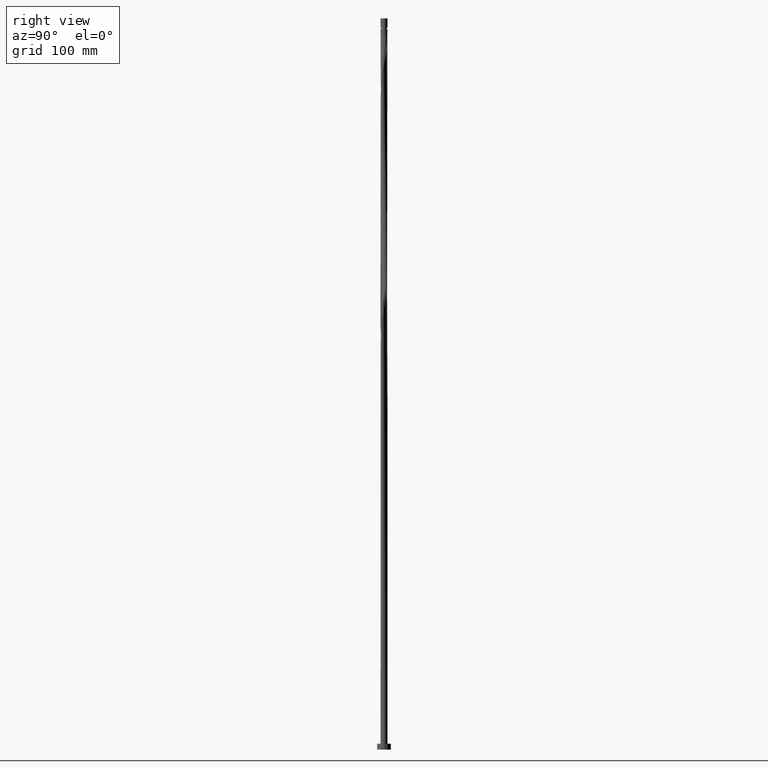
[diagram: clean part render]
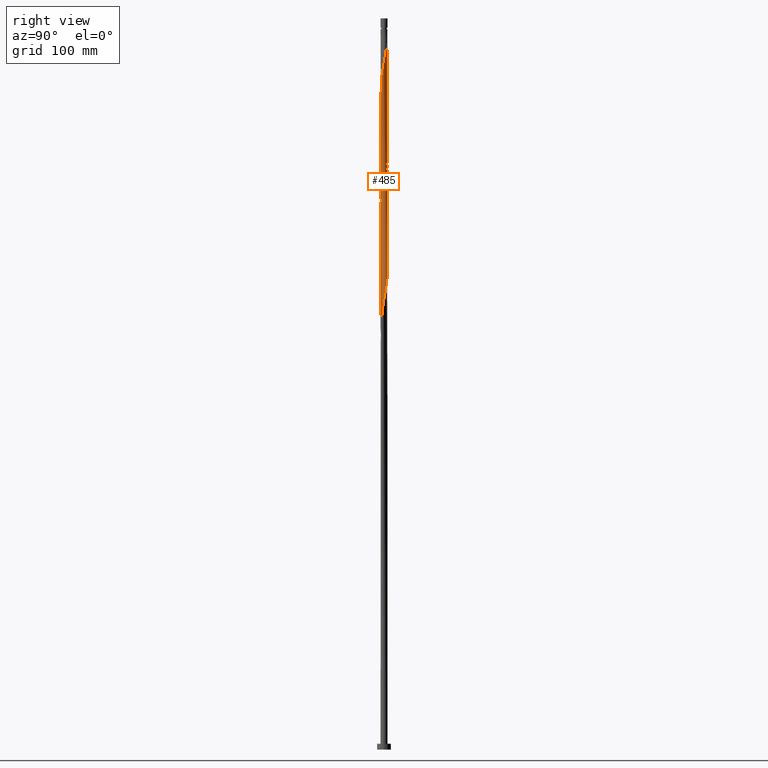
[diagram: same view with one face highlighted and labeled with its STEP entity id]
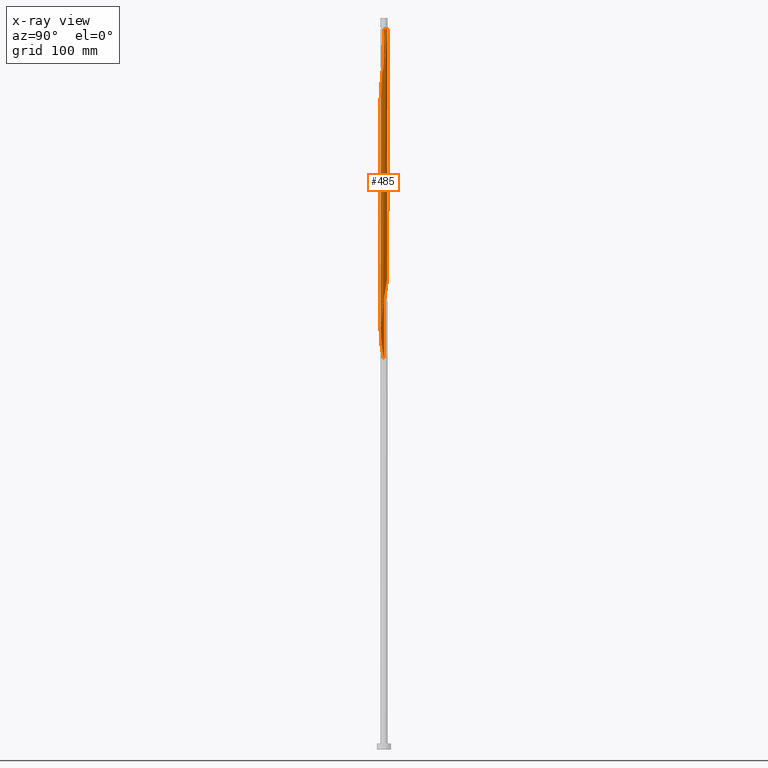
[diagram: x-ray of the same camera — body ghosted, the highlighted face saturated]
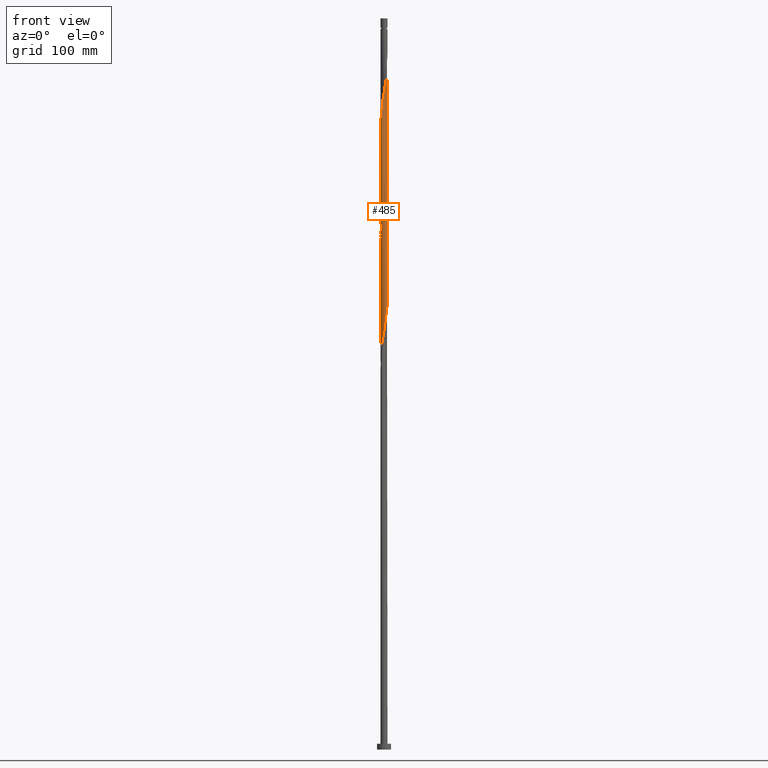
[diagram: same view with one face highlighted and labeled with its STEP entity id]
A machine part, right view. The second image highlights one B-rep face of the part: STEP entity #485.
The next image is the same camera in x-ray: the body ghosted, the highlighted face saturated — about 0% of this face is hidden behind the body in this view.
A second angle (front view) of the same face is appended — the face is thin or edge-on in the first view.
In plain terms, the highlighted cylindrical surface (bore or boss wall) has radius 3 mm, axis along (-0, -0, -1).
Its self-contained STEP definition (entity closure, byte-faithful):
#5 = ORIENTED_EDGE ( 'NONE', *, *, #1418, .F. ) ;
#6 = CARTESIAN_POINT ( 'NONE',  ( -2.194724654370445727, 2.064088819191737478, 532.7914885666799591 ) ) ;
#14 = CARTESIAN_POINT ( 'NONE',  ( 2.982541993412459735, 0.3231768208446592627, 593.0120768019737625 ) ) ;
#22 = VERTEX_POINT ( 'NONE', #1299 ) ;
#23 = CARTESIAN_POINT ( 'NONE',  ( -0.04660394873883114825, 2.999637990151807543, 617.7179591549150928 ) ) ;
#28 = DIRECTION ( 'NONE',  ( -0.000000000000000000, -0.000000000000000000, -1.000000000000000000 ) ) ;
#44 = CARTESIAN_POINT ( 'NONE',  ( -1.300884907186418582, 2.717531493887126892, 526.6150179784447118 ) ) ;
#49 = CARTESIAN_POINT ( 'NONE',  ( 2.825969499858178136, -1.044593388781091869, 585.2914885666795044 ) ) ;
#56 = CARTESIAN_POINT ( 'NONE',  ( 1.127051113500263435, 2.780243835989537171, 512.7179591549150928 ) ) ;
#61 = CARTESIAN_POINT ( 'NONE',  ( 2.897882515124419189, -0.7760650285486373479, 586.8356062137385152 ) ) ;
#70 = CARTESIAN_POINT ( 'NONE',  ( 2.365677638043353515, 1.844876503417411051, 602.2767826843266903 ) ) ;
#82 = CARTESIAN_POINT ( 'NONE',  ( 1.539482439194282515, 2.574877437745814568, 608.4532532725622787 ) ) ;
#102 = CARTESIAN_POINT ( 'NONE',  ( -3.012488736012828738, 0.04680360466508876743, 440.1444297431503969 ) ) ;
#109 = CARTESIAN_POINT ( 'NONE',  ( 0.3245613423124111829, -2.995319498332392971, 566.7620768019739899 ) ) ;
#116 = CARTESIAN_POINT ( 'NONE',  ( -1.384678644784982593, -2.675807170311462535, 353.6738415078563662 ) ) ;
#122 = CARTESIAN_POINT ( 'NONE',  ( 1.852780136845253445, -2.375812435047330418, 576.0267826843268040 ) ) ;
#128 = CARTESIAN_POINT ( 'NONE',  ( -1.852780136845251890, -2.375812435047325977, 350.5856062137387426 ) ) ;
#133 = CARTESIAN_POINT ( 'NONE',  ( -1.300884907186420802, -2.717531493887130445, 557.4973709196208347 ) ) ;
#138 = CARTESIAN_POINT ( 'NONE',  ( 3.012488736012828738, -0.04680360466508843437, 387.6444297431504538 ) ) ;
#139 = CARTESIAN_POINT ( 'NONE',  ( -2.982541993412459735, -0.3231768208446587076, 540.5120768019739899 ) ) ;
#144 = CARTESIAN_POINT ( 'NONE',  ( -1.778079971202145115, -2.432223381604499135, 554.4091356255033816 ) ) ;
#149 = CARTESIAN_POINT ( 'NONE',  ( -2.792154675592610769, 1.131879511953520323, 433.9679591549151496 ) ) ;
#158 = CYLINDRICAL_SURFACE ( 'NONE', #254, 3.000000000000000444 ) ;
#161 = CARTESIAN_POINT ( 'NONE',  ( -2.585908467384851583, -1.546077734242732094, 344.4091356255033816 ) ) ;
#186 = DIRECTION ( 'NONE',  ( -0.000000000000000000, -0.000000000000000000, -1.000000000000000000 ) ) ;
#191 = CARTESIAN_POINT ( 'NONE',  ( 2.872374963202350973, 0.8657147744888740171, 596.1003120960915567 ) ) ;
#197 = CARTESIAN_POINT ( 'NONE',  ( -2.365677638043349074, 1.844876503417407720, 534.3356062137385152 ) ) ;
#218 = CARTESIAN_POINT ( 'NONE',  ( 0.3245613423124107388, 2.995319498332386754, 517.3503120960915567 ) ) ;
#238 = CARTESIAN_POINT ( 'NONE',  ( 0.5053716063653423962, -2.957126906218214835, 469.4826650372681343 ) ) ;
#250 =( BOUNDED_CURVE ( )  B_SPLINE_CURVE ( 2, ( #1995, #1837, #550, #1346, #266, #1056, #386, #1177, #1682, #258, #730, #1807, #1027, #1215, #1038, #1653, #238, #889, #720, #1185, #906, #1514, #1356, #748, #1197, #1828, #2003, #397, #1047, #1375, #578, #1674, #1845, #915, #1540, #102, #758, #1702, #1861, #149, #1391, #1571, #777, #955, #302, #458, #798, #1854, #291, #1581, #1270, #1428, #2033, #600, #944, #2023, #1416, #274, #1115, #1105, #436, #923, #1730, #445, #1237, #2013, #1551, #2053, #1088, #138, #1230, #1711, #283, #612, #637, #1096, #1894, #1562, #784, #1247, #427, #1871, #473, #1722, #1259, #934, #2043, #624, #312, #1883, #1738, #116, #1077, #128, #1402, #965, #1591, #161, #809, #589, #767, #1773, #531, #1324, #1919 ),
 .UNSPECIFIED., .F., .T. ) 
 B_SPLINE_CURVE_WITH_KNOTS ( ( 3, 2, 2, 2, 2, 2, 2, 2, 2, 2, 2, 2, 2, 2, 2, 2, 2, 2, 2, 2, 2, 2, 2, 2, 2, 2, 2, 2, 2, 2, 2, 2, 2, 2, 2, 2, 2, 2, 2, 2, 2, 2, 2, 2, 2, 2, 2, 2, 2, 2, 2, 2, 3 ),
 ( 0.5545293573162904943, 0.5588235294117647189, 0.5661764705882352811, 0.5735294117647058432, 0.5808823529411765163, 0.5882352941176470784, 0.5955882352941176405, 0.6029411764705882026, 0.6102941176470588758, 0.6176470588235294379, 0.6250000000000000000, 0.6323529411764705621, 0.6397058823529411242, 0.6470588235294117974, 0.6544117647058823595, 0.6617647058823529216, 0.6691176470588234837, 0.6764705882352941568, 0.6838235294117647189, 0.6911764705882352811, 0.6985294117647058432, 0.7058823529411765163, 0.7132352941176470784, 0.7205882352941176405, 0.7279411764705882026, 0.7352941176470588758, 0.7426470588235294379, 0.7500000000000000000, 0.7573529411764705621, 0.7647058823529411242, 0.7720588235294117974, 0.7794117647058823595, 0.7867647058823529216, 0.7941176470588234837, 0.8014705882352941568, 0.8088235294117647189, 0.8161764705882352811, 0.8235294117647058432, 0.8308823529411765163, 0.8382352941176470784, 0.8455882352941176405, 0.8529411764705882026, 0.8602941176470588758, 0.8676470588235294379, 0.8750000000000000000, 0.8823529411764705621, 0.8897058823529411242, 0.8970588235294117974, 0.9044117647058823595, 0.9117647058823529216, 0.9191176470588234837, 0.9264705882352941568, 0.9295293573162902723 ),
 .UNSPECIFIED. ) 
 CURVE ( )  GEOMETRIC_REPRESENTATION_ITEM ( )  RATIONAL_B_SPLINE_CURVE ( ( 0.9072066346053562214, 0.9068261157891231994, 0.9090909090909947698, 0.9052128875410255793, 0.9090909090909947698, 0.9052128875410255793, 0.9090909090909947698, 0.9052128875410255793, 0.9090909090909947698, 0.9052128875410255793, 0.9090909090909947698, 0.9052128875410255793, 0.9090909090909947698, 0.9052128875410255793, 0.9090909090909947698, 0.9052128875410255793, 0.9090909090909947698, 0.9052128875410255793, 0.9090909090909947698, 0.9052128875410255793, 0.9090909090909947698, 0.9052128875410255793, 0.9090909090909947698, 0.9052128875410255793, 0.9090909090909947698, 0.9052128875410255793, 0.9090909090909947698, 0.9052128875410255793, 0.9090909090909947698, 0.9052128875410255793, 0.9090909090909947698, 0.9052128875410255793, 0.9090909090909947698, 0.9052128875410255793, 0.9090909090909947698, 0.9052128875410255793, 0.9090909090909947698, 0.9052128875410255793, 0.9090909090909947698, 0.9052128875410255793, 0.9090909090909947698, 0.9052128875410255793, 0.9090909090909947698, 0.9052128875410255793, 0.9090909090909947698, 0.9052128875410255793, 0.9090909090909947698, 0.9052128875410255793, 0.9090909090909947698, 0.9052128875410255793, 0.9090909090909947698, 0.9052128875410255793, 0.9090909090909947698, 0.9052128875410255793, 0.9090909090909947698, 0.9052128875410255793, 0.9090909090909947698, 0.9052128875410255793, 0.9090909090909947698, 0.9052128875410255793, 0.9090909090909947698, 0.9052128875410255793, 0.9090909090909947698, 0.9052128875410255793, 0.9090909090909947698, 0.9052128875410255793, 0.9090909090909947698, 0.9052128875410255793, 0.9090909090909947698, 0.9052128875410255793, 0.9090909090909947698, 0.9052128875410255793, 0.9090909090909947698, 0.9052128875410255793, 0.9090909090909947698, 0.9052128875410255793, 0.9090909090909947698, 0.9052128875410255793, 0.9090909090909947698, 0.9052128875410255793, 0.9090909090909947698, 0.9052128875410255793, 0.9090909090909947698, 0.9052128875410255793, 0.9090909090909947698, 0.9052128875410255793, 0.9090909090909947698, 0.9052128875410255793, 0.9090909090909947698, 0.9052128875410255793, 0.9090909090909947698, 0.9052128875410255793, 0.9090909090909947698, 0.9052128875410255793, 0.9090909090909947698, 0.9052128875410255793, 0.9090909090909947698, 0.9052128875410255793, 0.9090909090909947698, 0.9052128875410255793, 0.9090909090909947698, 0.9052128875410255793, 0.9090909090909947698, 0.9074776808428971497, 0.9072066346053563324 ) ) 
 REPRESENTATION_ITEM ( '' )  );
#252 = CARTESIAN_POINT ( 'NONE',  ( 2.194724654370450168, 2.064088819191740587, 603.8209003313859284 ) ) ;
#254 = AXIS2_PLACEMENT_3D ( 'NONE', #1437, #1619, #1748 ) ;
#258 = CARTESIAN_POINT ( 'NONE',  ( 2.194724654370444838, -2.064088819191738366, 480.2914885666799023 ) ) ;
#266 = CARTESIAN_POINT ( 'NONE',  ( 2.872374963202346088, -0.8657147744888742391, 488.0120768019738762 ) ) ;
#274 = CARTESIAN_POINT ( 'NONE',  ( 1.384678644784983037, 2.675807170311462535, 406.1738415078564230 ) ) ;
#283 = CARTESIAN_POINT ( 'NONE',  ( 2.872374963202346088, -0.8657147744888742391, 383.0120768019739330 ) ) ;
#287 = CARTESIAN_POINT ( 'NONE',  ( -2.194724654370450168, -2.064088819191741031, 551.3209003313858148 ) ) ;
#291 = CARTESIAN_POINT ( 'NONE',  ( -1.040137337541176432, 2.813914412176169222, 420.0709003313856442 ) ) ;
#292 = CARTESIAN_POINT ( 'NONE',  ( -3.000000000000004885, 3.585298424180292749E-16, 538.7079856743387154 ) ) ;
#302 = CARTESIAN_POINT ( 'NONE',  ( -1.986402312786293534, 2.248156100398116308, 426.2473709196210052 ) ) ;
#312 = CARTESIAN_POINT ( 'NONE',  ( -0.5969924622639782852, -2.939999999999999503, 358.3061944490327733 ) ) ;
#319 = DIRECTION ( 'NONE',  ( -0.000000000000000000, -0.000000000000000000, -1.000000000000000000 ) ) ;
#332 = CARTESIAN_POINT ( 'NONE',  ( 0.000000000000000000, 0.000000000000000000, 620.8061944490327733 ) ) ;
#340 = CARTESIAN_POINT ( 'NONE',  ( 0.2313534448347508987, 3.003956481971224335, 616.1738415078564230 ) ) ;
#351 = ORIENTED_EDGE ( 'NONE', *, *, #715, .F. ) ;
#353 = CARTESIAN_POINT ( 'NONE',  ( -2.792154675592610769, 1.131879511953520323, 538.9679591549149791 ) ) ;
#386 = CARTESIAN_POINT ( 'NONE',  ( 2.664392648654431817, -1.378771849798299920, 484.9238415078563662 ) ) ;
#397 = CARTESIAN_POINT ( 'NONE',  ( -2.257787423510099423, -1.994912256780594584, 452.4973709196210052 ) ) ;
#427 = CARTESIAN_POINT ( 'NONE',  ( 1.539482439194279628, -2.574877437745810571, 370.6591356255033816 ) ) ;
#436 = CARTESIAN_POINT ( 'NONE',  ( 2.055283780177675546, 2.185362345913958837, 401.5414885666797886 ) ) ;
#445 = CARTESIAN_POINT ( 'NONE',  ( 2.585908467384851583, 1.546077734242732538, 396.9091356255033247 ) ) ;
#458 = CARTESIAN_POINT ( 'NONE',  ( -1.778079971202141785, 2.432223381604495582, 424.7032532725622218 ) ) ;
#459 = CARTESIAN_POINT ( 'NONE',  ( -2.792154675592615654, -1.131879511953520989, 545.1444297431505674 ) ) ;
#466 = FACE_OUTER_BOUND ( 'NONE', #679, .T. ) ;
#473 = CARTESIAN_POINT ( 'NONE',  ( 1.040137337541176876, -2.813914412176168778, 367.5709003313856442 ) ) ;
#485 = ADVANCED_FACE ( 'NONE', ( #466 ), #158, .T. ) ;
#502 = CARTESIAN_POINT ( 'NONE',  ( -1.986402312786293534, 2.248156100398116308, 531.2473709196209484 ) ) ;
#513 = CARTESIAN_POINT ( 'NONE',  ( -3.000000000000000000, -2.987748686816930962E-17, 545.4044032237267174 ) ) ;
#514 = CARTESIAN_POINT ( 'NONE',  ( 1.986402312786298197, 2.248156100398118529, 605.3650179784445982 ) ) ;
#522 = CARTESIAN_POINT ( 'NONE',  ( 0.8694235822155456095, 2.884680501667613139, 514.2620768019738762 ) ) ;
#531 = CARTESIAN_POINT ( 'NONE',  ( -2.991142133201742492, -0.2303665318255478378, 336.6885473902091235 ) ) ;
#533 = CARTESIAN_POINT ( 'NONE',  ( -0.5053716063653417301, 2.957126906218214835, 521.9826650372681343 ) ) ;
#541 = CARTESIAN_POINT ( 'NONE',  ( 3.000000000000000888, 0.1153535636630428490, 493.5478089757866087 ) ) ;
#550 = CARTESIAN_POINT ( 'NONE',  ( 2.982541993412455739, -0.3231768208446603730, 491.1003120960915567 ) ) ;
#554 = VECTOR ( 'NONE', #710, 1000.000000000000000 ) ;
#576 = CARTESIAN_POINT ( 'NONE',  ( 2.705938983621515970, -1.295335561511913092, 583.7473709196210621 ) ) ;
#578 = CARTESIAN_POINT ( 'NONE',  ( -2.705938983621512861, -1.295335561511909983, 447.8650179784445982 ) ) ;
#582 = CARTESIAN_POINT ( 'NONE',  ( 0.8694235822155469418, -2.884680501667616248, 569.8503120960916704 ) ) ;
#589 = CARTESIAN_POINT ( 'NONE',  ( -2.825969499858173695, -1.044593388781090315, 341.3209003313856442 ) ) ;
#600 = CARTESIAN_POINT ( 'NONE',  ( 0.3245613423124107388, 2.995319498332386754, 412.3503120960915567 ) ) ;
#608 = CARTESIAN_POINT ( 'NONE',  ( 2.055283780177677766, -2.185362345913963722, 577.5709003313855874 ) ) ;
#612 = CARTESIAN_POINT ( 'NONE',  ( 2.792154675592611657, -1.131879511953519435, 381.4679591549151496 ) ) ;
#624 = CARTESIAN_POINT ( 'NONE',  ( -0.3245613423124104613, -2.995319498332386754, 359.8503120960915567 ) ) ;
#637 = CARTESIAN_POINT ( 'NONE',  ( 2.664392648654431817, -1.378771849798299920, 379.9238415078563094 ) ) ;
#648 = CARTESIAN_POINT ( 'NONE',  ( -3.000000000000000000, -2.987748686816930962E-17, 545.4044032237267174 ) ) ;
#662 = CARTESIAN_POINT ( 'NONE',  ( -0.2313534448347491501, 3.003956481971221226, 520.4385473902093509 ) ) ;
#674 = CARTESIAN_POINT ( 'NONE',  ( -3.000000000000000444, 0.000000000000000000, 630.0000000000000000 ) ) ;
#679 = EDGE_LOOP ( 'NONE', ( #351, #1758, #5, #1432, #891, #1109, #1507, #1292 ) ) ;
#684 = CARTESIAN_POINT ( 'NONE',  ( -1.778079971202141785, 2.432223381604495582, 529.7032532725622787 ) ) ;
#690 = CARTESIAN_POINT ( 'NONE',  ( 2.952595250812086292, 0.5995500370242289323, 594.5561944490327733 ) ) ;
#695 = CARTESIAN_POINT ( 'NONE',  ( -1.040137337541176432, 2.813914412176169222, 525.0709003313857011 ) ) ;
#696 = VECTOR ( 'NONE', #186, 1000.000000000000000 ) ;
#697 = CARTESIAN_POINT ( 'NONE',  ( 2.664392648654435369, 1.378771849798300142, 599.1885473902093509 ) ) ;
#702 = CARTESIAN_POINT ( 'NONE',  ( 2.991142133201746489, -0.2303665318255492811, 589.9238415078564230 ) ) ;
#710 = DIRECTION ( 'NONE',  ( -0.000000000000000000, -0.000000000000000000, -1.000000000000000000 ) ) ;
#715 = EDGE_CURVE ( 'NONE', #832, #1821, #1459, .T. ) ;
#720 = CARTESIAN_POINT ( 'NONE',  ( -0.04660394873883132866, -2.999637990151803102, 466.3944297431503401 ) ) ;
#730 = CARTESIAN_POINT ( 'NONE',  ( 1.986402312786293534, -2.248156100398116308, 478.7473709196209484 ) ) ;
#734 = VECTOR ( 'NONE', #28, 1000.000000000000000 ) ;
#748 = CARTESIAN_POINT ( 'NONE',  ( -1.384678644784982593, -2.675807170311462535, 458.6738415078563662 ) ) ;
#758 = CARTESIAN_POINT ( 'NONE',  ( -2.982541993412455739, 0.3231768208446592627, 438.6003120960914998 ) ) ;
#767 = CARTESIAN_POINT ( 'NONE',  ( -2.897882515124415193, -0.7760650285486363487, 339.7767826843268608 ) ) ;
#772 = CARTESIAN_POINT ( 'NONE',  ( 2.257787423510101643, -1.994912256780598581, 579.1150179784444845 ) ) ;
#775 = EDGE_CURVE ( 'NONE', #832, #1743, #1683, .T. ) ;
#777 = CARTESIAN_POINT ( 'NONE',  ( -2.365677638043349074, 1.844876503417407720, 429.3356062137386289 ) ) ;
#784 = CARTESIAN_POINT ( 'NONE',  ( 1.986402312786293534, -2.248156100398116308, 373.7473709196210052 ) ) ;
#786 = CARTESIAN_POINT ( 'NONE',  ( -2.952595250812086292, -0.5995500370242291543, 542.0561944490328870 ) ) ;
#789 = VERTEX_POINT ( 'NONE', #816 ) ;
#791 = CARTESIAN_POINT ( 'NONE',  ( -2.365677638043353515, -1.844876503417409941, 549.7767826843268040 ) ) ;
#798 = CARTESIAN_POINT ( 'NONE',  ( -1.539482439194279628, 2.574877437745810571, 423.1591356255033247 ) ) ;
#804 = CARTESIAN_POINT ( 'NONE',  ( -0.5053716063653430624, -2.957126906218219720, 562.1297238607975260 ) ) ;
#809 = CARTESIAN_POINT ( 'NONE',  ( -2.705938983621512861, -1.295335561511909983, 342.8650179784445982 ) ) ;
#816 = CARTESIAN_POINT ( 'NONE',  ( 3.000000000000000444, 3.673940397442060361E-16, 620.8061944490328870 ) ) ;
#826 = CARTESIAN_POINT ( 'NONE',  ( -2.872374963202346088, 0.8657147744888745722, 540.5120768019739899 ) ) ;
#832 = VERTEX_POINT ( 'NONE', #1156 ) ;
#839 = CARTESIAN_POINT ( 'NONE',  ( -3.000000000000000444, 0.000000000000000000, 630.0000000000000000 ) ) ;
#841 = CARTESIAN_POINT ( 'NONE',  ( 2.792154675592615654, 1.131879511953521877, 597.6444297431503401 ) ) ;
#858 = CARTESIAN_POINT ( 'NONE',  ( 2.825969499858173695, 1.044593388781089649, 498.8209003313857011 ) ) ;
#867 = CARTESIAN_POINT ( 'NONE',  ( 0.5969924622639788403, 2.939999999999999503, 515.8061944490327733 ) ) ;
#889 = CARTESIAN_POINT ( 'NONE',  ( 0.2313534448347491501, -3.003956481971221226, 467.9385473902093509 ) ) ;
#891 = ORIENTED_EDGE ( 'NONE', *, *, #1805, .F. ) ;
#900 = CARTESIAN_POINT ( 'NONE',  ( -2.664392648654435369, -1.378771849798300586, 546.6885473902093509 ) ) ;
#906 = CARTESIAN_POINT ( 'NONE',  ( -0.5969924622639782852, -2.939999999999999503, 463.3061944490327733 ) ) ;
#915 = CARTESIAN_POINT ( 'NONE',  ( -2.969795530390656246, -0.5075366683161843806, 443.2326650372680774 ) ) ;
#923 = CARTESIAN_POINT ( 'NONE',  ( 2.257787423510099423, 1.994912256780594584, 399.9973709196210052 ) ) ;
#934 = CARTESIAN_POINT ( 'NONE',  ( 0.2313534448347491501, -3.003956481971221226, 362.9385473902092372 ) ) ;
#940 = CARTESIAN_POINT ( 'NONE',  ( -1.040137337541177986, -2.813914412176173663, 559.0414885666798455 ) ) ;
#944 = CARTESIAN_POINT ( 'NONE',  ( 0.5969924622639788403, 2.939999999999999503, 410.8061944490327733 ) ) ;
#950 = CARTESIAN_POINT ( 'NONE',  ( -2.536630621716258638, -1.625664187643080183, 548.2326650372682479 ) ) ;
#955 = CARTESIAN_POINT ( 'NONE',  ( -2.194724654370445727, 2.064088819191737478, 427.7914885666799591 ) ) ;
#965 = CARTESIAN_POINT ( 'NONE',  ( -2.257787423510099423, -1.994912256780594584, 347.4973709196210052 ) ) ;
#993 = EDGE_CURVE ( 'NONE', #789, #22, #1154, .T. ) ;
#1002 = CARTESIAN_POINT ( 'NONE',  ( 2.055283780177675546, 2.185362345913958837, 506.5414885666797886 ) ) ;
#1010 = CARTESIAN_POINT ( 'NONE',  ( 2.585908467384851583, 1.546077734242732538, 501.9091356255033247 ) ) ;
#1018 = CARTESIAN_POINT ( 'NONE',  ( -2.952595250812082739, 0.5995500370242290433, 542.0561944490328870 ) ) ;
#1027 = CARTESIAN_POINT ( 'NONE',  ( 1.539482439194279628, -2.574877437745810571, 475.6591356255032679 ) ) ;
#1038 = CARTESIAN_POINT ( 'NONE',  ( 1.040137337541176876, -2.813914412176168778, 472.5709003313857011 ) ) ;
#1047 = CARTESIAN_POINT ( 'NONE',  ( -2.421847945447475503, -1.770494995511663117, 450.9532532725621650 ) ) ;
#1056 = CARTESIAN_POINT ( 'NONE',  ( 2.792154675592611657, -1.131879511953519435, 486.4679591549152633 ) ) ;
#1077 = CARTESIAN_POINT ( 'NONE',  ( -1.618729390815116576, -2.525809802679395144, 352.1297238607973554 ) ) ;
#1088 = CARTESIAN_POINT ( 'NONE',  ( 2.991142133201742492, 0.2303665318255475047, 389.1885473902092940 ) ) ;
#1096 = CARTESIAN_POINT ( 'NONE',  ( 2.536630621716254197, -1.625664187643078407, 378.3797238607974691 ) ) ;
#1105 = CARTESIAN_POINT ( 'NONE',  ( 1.852780136845251224, 2.375812435047325977, 403.0856062137386289 ) ) ;
#1109 = ORIENTED_EDGE ( 'NONE', *, *, #993, .F. ) ;
#1115 = CARTESIAN_POINT ( 'NONE',  ( 1.618729390815117242, 2.525809802679395144, 404.6297238607973554 ) ) ;
#1117 = CARTESIAN_POINT ( 'NONE',  ( 2.536630621716258638, 1.625664187643079517, 600.7326650372680206 ) ) ;
#1134 = CARTESIAN_POINT ( 'NONE',  ( 2.969795530390656690, 0.5075366683161836034, 495.7326650372679637 ) ) ;
#1144 = EDGE_CURVE ( 'NONE', #1784, #1279, #1615, .T. ) ;
#1153 = CARTESIAN_POINT ( 'NONE',  ( -1.539482439194279628, 2.574877437745810571, 528.1591356255032679 ) ) ;
#1154 = LINE ( 'NONE', #1644, #554 ) ;
#1156 = CARTESIAN_POINT ( 'NONE',  ( -2.999999999999936939, 0.000000000000000000, 620.8061944490327733 ) ) ;
#1161 = CARTESIAN_POINT ( 'NONE',  ( 1.852780136845251224, 2.375812435047325977, 508.0856062137387994 ) ) ;
#1177 = CARTESIAN_POINT ( 'NONE',  ( 2.536630621716254197, -1.625664187643078407, 483.3797238607975260 ) ) ;
#1185 = CARTESIAN_POINT ( 'NONE',  ( -0.3245613423124104613, -2.995319498332386754, 464.8503120960917272 ) ) ;
#1197 = CARTESIAN_POINT ( 'NONE',  ( -1.618729390815116576, -2.525809802679395144, 457.1297238607974123 ) ) ;
#1215 = CARTESIAN_POINT ( 'NONE',  ( 1.300884907186417472, -2.717531493887127336, 474.1150179784445413 ) ) ;
#1222 = CARTESIAN_POINT ( 'NONE',  ( 1.127051113500264545, -2.780243835989542056, 571.3944297431505674 ) ) ;
#1224 = CARTESIAN_POINT ( 'NONE',  ( 2.969795530390661131, -0.5075366683161854908, 588.3797238607974123 ) ) ;
#1230 = CARTESIAN_POINT ( 'NONE',  ( 2.982541993412455739, -0.3231768208446603730, 386.1003120960916135 ) ) ;
#1237 = CARTESIAN_POINT ( 'NONE',  ( 2.705938983621512861, 1.295335561511909317, 395.3650179784444845 ) ) ;
#1242 = CARTESIAN_POINT ( 'NONE',  ( 2.585908467384855580, -1.546077734242734536, 582.2032532725622787 ) ) ;
#1247 = CARTESIAN_POINT ( 'NONE',  ( 1.778079971202142229, -2.432223381604495138, 372.2032532725622218 ) ) ;
#1253 = CARTESIAN_POINT ( 'NONE',  ( 0.5969924622639781742, -2.940000000000003499, 568.3061944490326596 ) ) ;
#1259 = CARTESIAN_POINT ( 'NONE',  ( 0.5053716063653423962, -2.957126906218214835, 364.4826650372680774 ) ) ;
#1270 = CARTESIAN_POINT ( 'NONE',  ( -0.5053716063653417301, 2.957126906218214835, 416.9826650372681343 ) ) ;
#1279 = VERTEX_POINT ( 'NONE', #1622 ) ;
#1292 = ORIENTED_EDGE ( 'NONE', *, *, #1632, .F. ) ;
#1299 = CARTESIAN_POINT ( 'NONE',  ( 3.000000000000000000, 2.330443975717206039E-15, 492.9044032237268880 ) ) ;
#1309 = DIRECTION ( 'NONE',  ( -1.000000000000000000, 0.000000000000000000, 0.000000000000000000 ) ) ;
#1319 =( BOUNDED_CURVE ( )  B_SPLINE_CURVE ( 2, ( #513, #1457, #1953, #1018, #826, #353, #1614, #1643, #197, #6, #502, #684, #1153, #44, #695, #1634, #533, #662, #1944, #218, #867, #522, #56, #1777, #1469, #1161, #1002, #1626, #1789, #1010, #1336, #858, #1962, #1134, #1818, #541, #1505 ),
 .UNSPECIFIED., .F., .T. ) 
 B_SPLINE_CURVE_WITH_KNOTS ( ( 3, 2, 2, 2, 2, 2, 2, 2, 2, 2, 2, 2, 2, 2, 2, 2, 2, 2, 3 ),
 ( 0.4295293573162906053, 0.4338235294117647189, 0.4411764705882352811, 0.4485294117647058987, 0.4558823529411764608, 0.4632352941176470784, 0.4705882352941176405, 0.4779411764705882582, 0.4852941176470588203, 0.4926470588235294379, 0.5000000000000000000, 0.5073529411764705621, 0.5147058823529411242, 0.5220588235294117974, 0.5294117647058823595, 0.5367647058823529216, 0.5441176470588234837, 0.5514705882352941568, 0.5545293573162904943 ),
 .UNSPECIFIED. ) 
 CURVE ( )  GEOMETRIC_REPRESENTATION_ITEM ( )  RATIONAL_B_SPLINE_CURVE ( ( 0.9072066346053562214, 0.9068261157891234214, 0.9090909090909947698, 0.9052128875410255793, 0.9090909090909947698, 0.9052128875410255793, 0.9090909090909947698, 0.9052128875410255793, 0.9090909090909947698, 0.9052128875410255793, 0.9090909090909947698, 0.9052128875410255793, 0.9090909090909947698, 0.9052128875410255793, 0.9090909090909947698, 0.9052128875410255793, 0.9090909090909947698, 0.9052128875410255793, 0.9090909090909947698, 0.9052128875410255793, 0.9090909090909947698, 0.9052128875410255793, 0.9090909090909947698, 0.9052128875410255793, 0.9090909090909947698, 0.9052128875410255793, 0.9090909090909947698, 0.9052128875410255793, 0.9090909090909947698, 0.9052128875410255793, 0.9090909090909947698, 0.9052128875410255793, 0.9090909090909947698, 0.9052128875410255793, 0.9090909090909947698, 0.9074776808428969277, 0.9072066346053562214 ) ) 
 REPRESENTATION_ITEM ( '' )  );
#1324 = CARTESIAN_POINT ( 'NONE',  ( -2.999999999999999556, -0.1153535636630513145, 336.0478089757864950 ) ) ;
#1330 = CARTESIAN_POINT ( 'NONE',  ( 3.012488736012832735, 0.04680360466508966255, 591.4679591549152065 ) ) ;
#1336 = CARTESIAN_POINT ( 'NONE',  ( 2.705938983621512861, 1.295335561511909317, 500.3650179784444845 ) ) ;
#1346 = CARTESIAN_POINT ( 'NONE',  ( 2.952595250812082739, -0.5995500370242294874, 489.5561944490328301 ) ) ;
#1356 = CARTESIAN_POINT ( 'NONE',  ( -1.127051113500264323, -2.780243835989537171, 460.2179591549150359 ) ) ;
#1366 = CARTESIAN_POINT ( 'NONE',  ( -3.000000000000004885, 3.585298424180292749E-16, 538.7079856743387154 ) ) ;
#1375 = CARTESIAN_POINT ( 'NONE',  ( -2.585908467384851583, -1.546077734242732094, 449.4091356255033816 ) ) ;
#1391 = CARTESIAN_POINT ( 'NONE',  ( -2.664392648654431817, 1.378771849798299032, 432.4238415078563094 ) ) ;
#1397 = CARTESIAN_POINT ( 'NONE',  ( -1.986402312786298197, -2.248156100398118973, 552.8650179784443708 ) ) ;
#1398 = CARTESIAN_POINT ( 'NONE',  ( 2.421847945447479056, -1.770494995511666669, 580.6591356255033816 ) ) ;
#1402 = CARTESIAN_POINT ( 'NONE',  ( -2.055283780177674657, -2.185362345913960169, 349.0414885666798455 ) ) ;
#1410 = CARTESIAN_POINT ( 'NONE',  ( -0.2313534448347506212, -3.003956481971224335, 563.6738415078563094 ) ) ;
#1416 = CARTESIAN_POINT ( 'NONE',  ( 1.127051113500263435, 2.780243835989537171, 407.7179591549150928 ) ) ;
#1417 = CARTESIAN_POINT ( 'NONE',  ( -2.872374963202350973, -0.8657147744888750163, 543.6003120960914430 ) ) ;
#1418 = EDGE_CURVE ( 'NONE', #1784, #1743, #1483, .T. ) ;
#1428 = CARTESIAN_POINT ( 'NONE',  ( -0.2313534448347491501, 3.003956481971221226, 415.4385473902092372 ) ) ;
#1432 = ORIENTED_EDGE ( 'NONE', *, *, #1144, .T. ) ;
#1434 = CARTESIAN_POINT ( 'NONE',  ( 1.778079971202144449, 2.432223381604499579, 606.9091356255033816 ) ) ;
#1437 = CARTESIAN_POINT ( 'NONE',  ( 0.000000000000000000, 0.000000000000000000, 630.0000000000000000 ) ) ;
#1457 = CARTESIAN_POINT ( 'NONE',  ( -2.999999999999999556, 0.1620599510378037678, 544.5004839917140771 ) ) ;
#1459 = LINE ( 'NONE', #839, #734 ) ;
#1469 = CARTESIAN_POINT ( 'NONE',  ( 1.618729390815117242, 2.525809802679395144, 509.6297238607974123 ) ) ;
#1483 =( BOUNDED_CURVE ( )  B_SPLINE_CURVE ( 2, ( #292, #1573, #139, #786, #1417, #459, #900, #950, #791, #287, #1397, #144, #1586, #133, #940, #1566, #804, #1410, #1654, #109, #1253, #582, #1222, #1707, #1557, #122, #608, #772, #1398, #1242, #576, #49, #61, #1224, #702, #1330, #14, #690, #191, #841, #697, #1117, #70, #252, #514, #1434, #82, #1775, #1787, #1660, #1989, #340, #23, #1986, #1946 ),
 .UNSPECIFIED., .F., .T. ) 
 B_SPLINE_CURVE_WITH_KNOTS ( ( 3, 2, 2, 2, 2, 2, 2, 2, 2, 2, 2, 2, 2, 2, 2, 2, 2, 2, 2, 2, 2, 2, 2, 2, 2, 2, 2, 3 ),
 ( 0.5545293573162900502, 0.5588235294117647189, 0.5661764705882352811, 0.5735294117647058432, 0.5808823529411764053, 0.5882352941176470784, 0.5955882352941176405, 0.6029411764705883137, 0.6102941176470588758, 0.6176470588235294379, 0.6250000000000000000, 0.6323529411764705621, 0.6397058823529411242, 0.6470588235294116863, 0.6544117647058822484, 0.6617647058823528106, 0.6691176470588235947, 0.6764705882352940458, 0.6838235294117646079, 0.6911764705882351700, 0.6985294117647057321, 0.7058823529411762943, 0.7132352941176469674, 0.7205882352941175295, 0.7279411764705882026, 0.7352941176470587648, 0.7426470588235293269, 0.7499999999999998890 ),
 .UNSPECIFIED. ) 
 CURVE ( )  GEOMETRIC_REPRESENTATION_ITEM ( )  RATIONAL_B_SPLINE_CURVE ( ( 0.9072066346053624386, 0.9068261157891290836, 0.9090909090910008761, 0.9052128875410317965, 0.9090909090910008761, 0.9052128875410317965, 0.9090909090910008761, 0.9052128875410317965, 0.9090909090910008761, 0.9052128875410317965, 0.9090909090910008761, 0.9052128875410317965, 0.9090909090910008761, 0.9052128875410317965, 0.9090909090910008761, 0.9052128875410317965, 0.9090909090910008761, 0.9052128875410317965, 0.9090909090910008761, 0.9052128875410317965, 0.9090909090910008761, 0.9052128875410317965, 0.9090909090910008761, 0.9052128875410317965, 0.9090909090910008761, 0.9052128875410317965, 0.9090909090910008761, 0.9052128875410317965, 0.9090909090910008761, 0.9052128875410317965, 0.9090909090910008761, 0.9052128875410317965, 0.9090909090910008761, 0.9052128875410317965, 0.9090909090910008761, 0.9052128875410317965, 0.9090909090910008761, 0.9052128875410317965, 0.9090909090910008761, 0.9052128875410317965, 0.9090909090910008761, 0.9052128875410317965, 0.9090909090910008761, 0.9052128875410317965, 0.9090909090910008761, 0.9052128875410317965, 0.9090909090910008761, 0.9052128875410317965, 0.9090909090910008761, 0.9052128875410317965, 0.9090909090910008761, 0.9052128875410317965, 0.9090909090910008761, 0.9052128875410319075, 0.9090909090910007651 ) ) 
 REPRESENTATION_ITEM ( '' )  );
#1505 = CARTESIAN_POINT ( 'NONE',  ( 3.000000000000000000, 2.330443975717206039E-15, 492.9044032237268880 ) ) ;
#1507 = ORIENTED_EDGE ( 'NONE', *, *, #993, .T. ) ;
#1514 = CARTESIAN_POINT ( 'NONE',  ( -0.8694235822155453874, -2.884680501667613139, 461.7620768019740467 ) ) ;
#1540 = CARTESIAN_POINT ( 'NONE',  ( -2.991142133201742492, -0.2303665318255478378, 441.6885473902092940 ) ) ;
#1551 = CARTESIAN_POINT ( 'NONE',  ( 2.897882515124415193, 0.7760650285486374589, 392.2767826843268040 ) ) ;
#1557 = CARTESIAN_POINT ( 'NONE',  ( 1.618729390815119018, -2.525809802679398697, 574.4826650372681343 ) ) ;
#1562 = CARTESIAN_POINT ( 'NONE',  ( 2.194724654370444838, -2.064088819191738366, 375.2914885666798455 ) ) ;
#1566 = CARTESIAN_POINT ( 'NONE',  ( -0.7793897678959365027, -2.910297330465215548, 560.5856062137388562 ) ) ;
#1571 = CARTESIAN_POINT ( 'NONE',  ( -2.536630621716254197, 1.625664187643078851, 430.8797238607974691 ) ) ;
#1573 = CARTESIAN_POINT ( 'NONE',  ( -3.000000000000007550, -0.1620599510377813968, 539.6119049063515831 ) ) ;
#1581 = CARTESIAN_POINT ( 'NONE',  ( -0.7793897678959346154, 2.910297330465211996, 418.5267826843268608 ) ) ;
#1586 = CARTESIAN_POINT ( 'NONE',  ( -1.539482439194282959, -2.574877437745813680, 555.9532532725621650 ) ) ;
#1591 = CARTESIAN_POINT ( 'NONE',  ( -2.421847945447475503, -1.770494995511663117, 345.9532532725622787 ) ) ;
#1614 = CARTESIAN_POINT ( 'NONE',  ( -2.664392648654431817, 1.378771849798299032, 537.4238415078563094 ) ) ;
#1615 = LINE ( 'NONE', #674, #696 ) ;
#1619 = DIRECTION ( 'NONE',  ( -0.000000000000000000, -0.000000000000000000, -1.000000000000000000 ) ) ;
#1621 = AXIS2_PLACEMENT_3D ( 'NONE', #332, #319, #1309 ) ;
#1622 = CARTESIAN_POINT ( 'NONE',  ( -3.000000000000000000, -2.464892666623968010E-15, 335.4044032237268880 ) ) ;
#1626 = CARTESIAN_POINT ( 'NONE',  ( 2.257787423510099423, 1.994912256780594584, 504.9973709196210621 ) ) ;
#1632 = EDGE_CURVE ( 'NONE', #1821, #22, #1319, .T. ) ;
#1634 = CARTESIAN_POINT ( 'NONE',  ( -0.7793897678959346154, 2.910297330465211996, 523.5267826843268040 ) ) ;
#1643 = CARTESIAN_POINT ( 'NONE',  ( -2.536630621716254197, 1.625664187643078851, 535.8797238607974123 ) ) ;
#1644 = CARTESIAN_POINT ( 'NONE',  ( 3.000000000000000444, 3.673940397442060361E-16, 630.0000000000000000 ) ) ;
#1653 = CARTESIAN_POINT ( 'NONE',  ( 0.7793897678959342823, -2.910297330465211996, 471.0267826843269177 ) ) ;
#1654 = CARTESIAN_POINT ( 'NONE',  ( 0.04660394873883029476, -2.999637990151807543, 565.2179591549149791 ) ) ;
#1660 = CARTESIAN_POINT ( 'NONE',  ( 0.7793897678959356146, 2.910297330465215992, 613.0856062137389699 ) ) ;
#1674 = CARTESIAN_POINT ( 'NONE',  ( -2.825969499858173695, -1.044593388781090315, 446.3209003313857579 ) ) ;
#1682 = CARTESIAN_POINT ( 'NONE',  ( 2.365677638043349518, -1.844876503417407054, 481.8356062137386857 ) ) ;
#1683 = CIRCLE ( 'NONE', #1621, 2.999999999999936939 ) ;
#1702 = CARTESIAN_POINT ( 'NONE',  ( -2.952595250812082739, 0.5995500370242290433, 437.0561944490328301 ) ) ;
#1707 = CARTESIAN_POINT ( 'NONE',  ( 1.384678644784983703, -2.675807170311466976, 572.9385473902092372 ) ) ;
#1711 = CARTESIAN_POINT ( 'NONE',  ( 2.952595250812082739, -0.5995500370242294874, 384.5561944490328870 ) ) ;
#1722 = CARTESIAN_POINT ( 'NONE',  ( 0.7793897678959342823, -2.910297330465211996, 366.0267826843269177 ) ) ;
#1730 = CARTESIAN_POINT ( 'NONE',  ( 2.421847945447475503, 1.770494995511663783, 398.4532532725622218 ) ) ;
#1738 = CARTESIAN_POINT ( 'NONE',  ( -1.127051113500264323, -2.780243835989537171, 355.2179591549151496 ) ) ;
#1743 = VERTEX_POINT ( 'NONE', #1982 ) ;
#1748 = DIRECTION ( 'NONE',  ( -1.000000000000000000, 0.000000000000000000, 0.000000000000000000 ) ) ;
#1758 = ORIENTED_EDGE ( 'NONE', *, *, #775, .T. ) ;
#1773 = CARTESIAN_POINT ( 'NONE',  ( -2.969795530390656246, -0.5075366683161843806, 338.2326650372681343 ) ) ;
#1775 = CARTESIAN_POINT ( 'NONE',  ( 1.300884907186420802, 2.717531493887130445, 609.9973709196210621 ) ) ;
#1777 = CARTESIAN_POINT ( 'NONE',  ( 1.384678644784983037, 2.675807170311462535, 511.1738415078562525 ) ) ;
#1784 = VERTEX_POINT ( 'NONE', #1366 ) ;
#1787 = CARTESIAN_POINT ( 'NONE',  ( 1.040137337541179319, 2.813914412176173219, 611.5414885666796181 ) ) ;
#1789 = CARTESIAN_POINT ( 'NONE',  ( 2.421847945447475503, 1.770494995511663783, 503.4532532725621081 ) ) ;
#1805 = EDGE_CURVE ( 'NONE', #22, #1279, #250, .T. ) ;
#1807 = CARTESIAN_POINT ( 'NONE',  ( 1.778079971202142229, -2.432223381604495138, 477.2032532725621081 ) ) ;
#1818 = CARTESIAN_POINT ( 'NONE',  ( 2.991142133201742492, 0.2303665318255475047, 494.1885473902092940 ) ) ;
#1821 = VERTEX_POINT ( 'NONE', #648 ) ;
#1828 = CARTESIAN_POINT ( 'NONE',  ( -1.852780136845251890, -2.375812435047325977, 455.5856062137386289 ) ) ;
#1837 = CARTESIAN_POINT ( 'NONE',  ( 3.000000000000000444, -0.1620599510377986885, 492.0004839917141908 ) ) ;
#1845 = CARTESIAN_POINT ( 'NONE',  ( -2.897882515124415193, -0.7760650285486363487, 444.7767826843268608 ) ) ;
#1854 = CARTESIAN_POINT ( 'NONE',  ( -1.300884907186418582, 2.717531493887126892, 421.6150179784444845 ) ) ;
#1861 = CARTESIAN_POINT ( 'NONE',  ( -2.872374963202346088, 0.8657147744888745722, 435.5120768019739330 ) ) ;
#1871 = CARTESIAN_POINT ( 'NONE',  ( 1.300884907186417472, -2.717531493887127336, 369.1150179784445413 ) ) ;
#1883 = CARTESIAN_POINT ( 'NONE',  ( -0.8694235822155453874, -2.884680501667613139, 356.7620768019739899 ) ) ;
#1894 = CARTESIAN_POINT ( 'NONE',  ( 2.365677638043349518, -1.844876503417407054, 376.8356062137386289 ) ) ;
#1919 = CARTESIAN_POINT ( 'NONE',  ( -3.000000000000000000, -2.464892666623968010E-15, 335.4044032237268880 ) ) ;
#1944 = CARTESIAN_POINT ( 'NONE',  ( 0.04660394873883068334, 2.999637990151803102, 518.8944297431503401 ) ) ;
#1946 = CARTESIAN_POINT ( 'NONE',  ( -0.5969924622640370160, 2.940000000000759783, 620.8061944490328870 ) ) ;
#1953 = CARTESIAN_POINT ( 'NONE',  ( -2.982541993412455739, 0.3231768208446592627, 543.6003120960916704 ) ) ;
#1962 = CARTESIAN_POINT ( 'NONE',  ( 2.897882515124415193, 0.7760650285486374589, 497.2767826843269177 ) ) ;
#1982 = CARTESIAN_POINT ( 'NONE',  ( -0.5969924622640370160, 2.940000000000759783, 620.8061944490328870 ) ) ;
#1986 = CARTESIAN_POINT ( 'NONE',  ( -0.3245613423124066310, 2.995319498332392083, 619.2620768019741035 ) ) ;
#1989 = CARTESIAN_POINT ( 'NONE',  ( 0.5053716063653433954, 2.957126906218219720, 614.6297238607974123 ) ) ;
#1995 = CARTESIAN_POINT ( 'NONE',  ( 3.000000000000000000, 2.330443975717206039E-15, 492.9044032237268880 ) ) ;
#2003 = CARTESIAN_POINT ( 'NONE',  ( -2.055283780177674657, -2.185362345913960169, 454.0414885666798455 ) ) ;
#2013 = CARTESIAN_POINT ( 'NONE',  ( 2.825969499858173695, 1.044593388781089649, 393.8209003313857579 ) ) ;
#2023 = CARTESIAN_POINT ( 'NONE',  ( 0.8694235822155456095, 2.884680501667613139, 409.2620768019739899 ) ) ;
#2033 = CARTESIAN_POINT ( 'NONE',  ( 0.04660394873883068334, 2.999637990151803102, 413.8944297431504538 ) ) ;
#2043 = CARTESIAN_POINT ( 'NONE',  ( -0.04660394873883132866, -2.999637990151803102, 361.3944297431504538 ) ) ;
#2053 = CARTESIAN_POINT ( 'NONE',  ( 2.969795530390656690, 0.5075366683161836034, 390.7326650372681343 ) ) ;